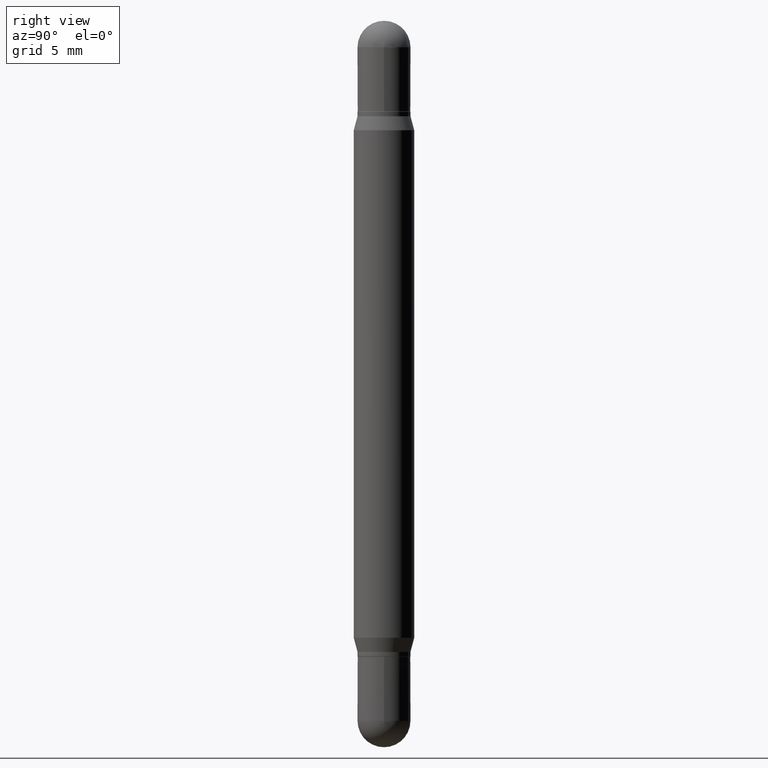
[diagram: clean part render]
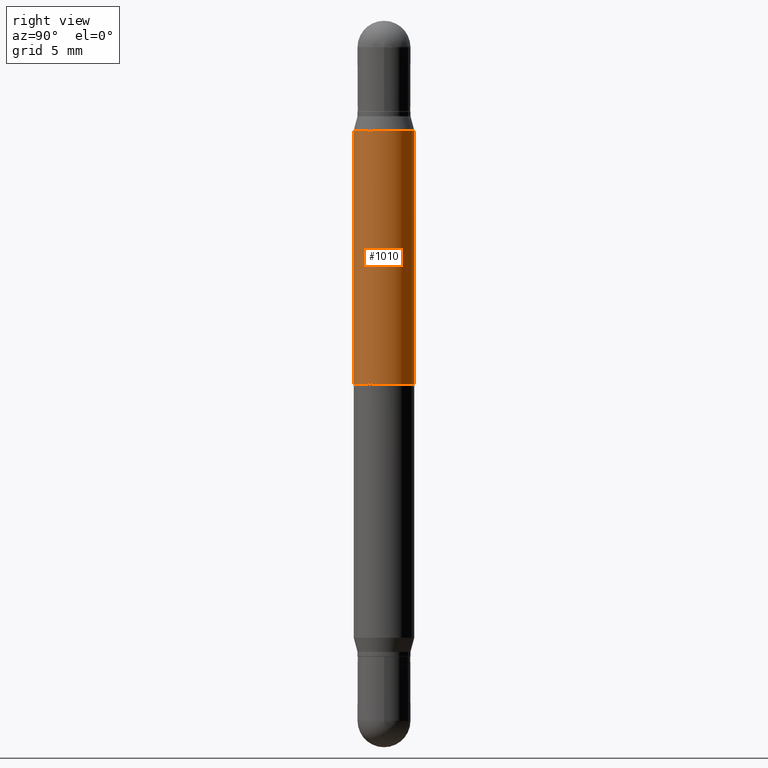
[diagram: same view with one face highlighted and labeled with its STEP entity id]
A machine part, right view. The second image highlights one B-rep face of the part: STEP entity #1010.
In plain terms, the highlighted cylindrical surface (edge-blend (fillet) strip) has radius 1.5875 mm, axis along (-0, -0, -1).
Its self-contained STEP definition (entity closure, byte-faithful):
#3 = EDGE_CURVE ( 'NONE', #935, #803, #442, .T. ) ;
#5 = ORIENTED_EDGE ( 'NONE', *, *, #3, .T. ) ;
#20 = DIRECTION ( 'NONE',  ( -2.445729317596611550E-29, -3.479987534146448973E-15, -1.000000000000000000 ) ) ;
#22 = AXIS2_PLACEMENT_3D ( 'NONE', #700, #1047, #615 ) ;
#94 = DIRECTION ( 'NONE',  ( -6.982962677686265922E-15, -1.000000000000000000, 3.278217592397115862E-15 ) ) ;
#129 = VECTOR ( 'NONE', #423, 39.37007874015748143 ) ;
#136 = ORIENTED_EDGE ( 'NONE', *, *, #281, .F. ) ;
#154 = CIRCLE ( 'NONE', #753, 0.06250000000000000000 ) ;
#169 = ORIENTED_EDGE ( 'NONE', *, *, #238, .F. ) ;
#179 = DIRECTION ( 'NONE',  ( -2.445729317596611550E-29, -3.479987534146448973E-15, -1.000000000000000000 ) ) ;
#192 = CARTESIAN_POINT ( 'NONE',  ( 3.115590129444697930E-29, -7.952005216126115397E-16, -0.2261099962990387735 ) ) ;
#238 = EDGE_CURVE ( 'NONE', #593, #815, #242, .T. ) ;
#242 = LINE ( 'NONE', #1042, #129 ) ;
#249 = ORIENTED_EDGE ( 'NONE', *, *, #804, .F. ) ;
#269 = DIRECTION ( 'NONE',  ( 2.445729317596611550E-29, 3.479987534146448973E-15, 1.000000000000000000 ) ) ;
#281 = EDGE_CURVE ( 'NONE', #935, #593, #154, .T. ) ;
#346 = CIRCLE ( 'NONE', #22, 0.06250000000000000000 ) ;
#351 = CYLINDRICAL_SURFACE ( 'NONE', #603, 0.06250000000000000000 ) ;
#355 = CARTESIAN_POINT ( 'NONE',  ( -4.364351673553732298E-16, -0.06250000000000262290, -0.7499999999999998890 ) ) ;
#358 = CARTESIAN_POINT ( 'NONE',  ( -4.364351673553916201E-16, -0.06250000000000521805, -1.500000000000000222 ) ) ;
#423 = DIRECTION ( 'NONE',  ( -2.445729317596611550E-29, -3.479987534146448973E-15, -1.000000000000000000 ) ) ;
#442 = LINE ( 'NONE', #358, #470 ) ;
#470 = VECTOR ( 'NONE', #20, 39.37007874015748143 ) ;
#472 = CARTESIAN_POINT ( 'NONE',  ( 4.287811248607454239E-16, 0.06249999999999737710, -0.7500000000000004441 ) ) ;
#593 = VERTEX_POINT ( 'NONE', #1004 ) ;
#603 = AXIS2_PLACEMENT_3D ( 'NONE', #682, #179, #952 ) ;
#615 = DIRECTION ( 'NONE',  ( 0.000000000000000000, 1.000000000000000000, -4.370956789862821150E-15 ) ) ;
#682 = CARTESIAN_POINT ( 'NONE',  ( 0.000000000000000000, -5.228321854365732350E-15, -1.500000000000000444 ) ) ;
#700 = CARTESIAN_POINT ( 'NONE',  ( 1.834296988197459363E-29, -2.618331203755894437E-15, -0.7500000000000002220 ) ) ;
#715 = CARTESIAN_POINT ( 'NONE',  ( -4.364351673553605094E-16, -0.06250000000000079103, -0.2261099962990385792 ) ) ;
#732 = EDGE_LOOP ( 'NONE', ( #169, #136, #5, #249 ) ) ;
#753 = AXIS2_PLACEMENT_3D ( 'NONE', #192, #269, #94 ) ;
#803 = VERTEX_POINT ( 'NONE', #355 ) ;
#804 = EDGE_CURVE ( 'NONE', #815, #803, #346, .T. ) ;
#815 = VERTEX_POINT ( 'NONE', #472 ) ;
#935 = VERTEX_POINT ( 'NONE', #715 ) ;
#952 = DIRECTION ( 'NONE',  ( -6.982962677686265922E-15, -1.000000000000000000, 4.370956789862821150E-15 ) ) ;
#1004 = CARTESIAN_POINT ( 'NONE',  ( 4.287811248607517840E-16, 0.06249999999999920203, -0.2261099962990389678 ) ) ;
#1010 = ADVANCED_FACE ( 'NONE', ( #1108 ), #351, .T. ) ;
#1042 = CARTESIAN_POINT ( 'NONE',  ( 4.287811248607206733E-16, 0.06249999999999477501, -1.500000000000000666 ) ) ;
#1047 = DIRECTION ( 'NONE',  ( -0.000000000000000000, -3.485547902910486918E-15, -1.000000000000000000 ) ) ;
#1108 = FACE_OUTER_BOUND ( 'NONE', #732, .T. ) ;